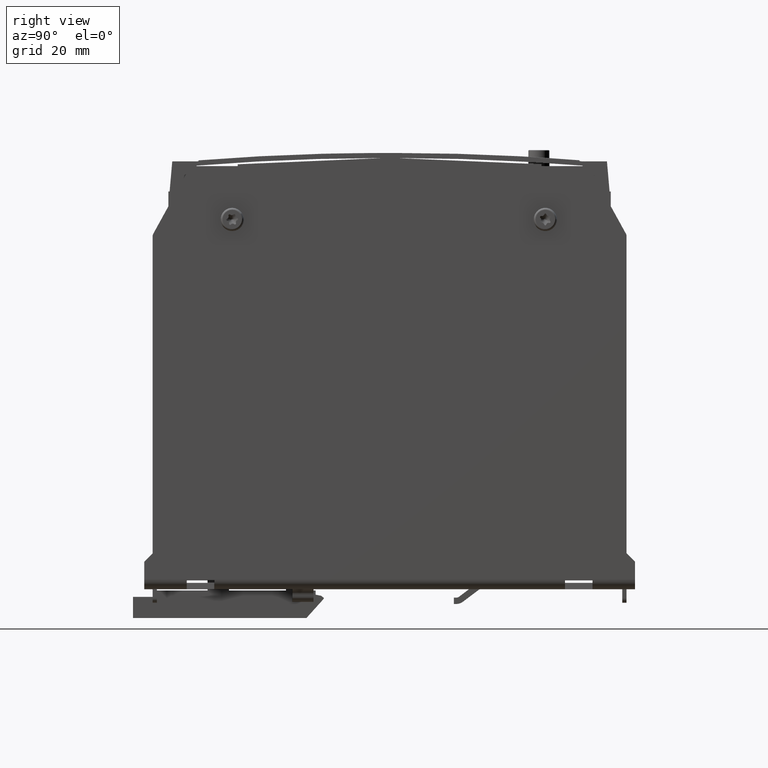
[diagram: clean part render]
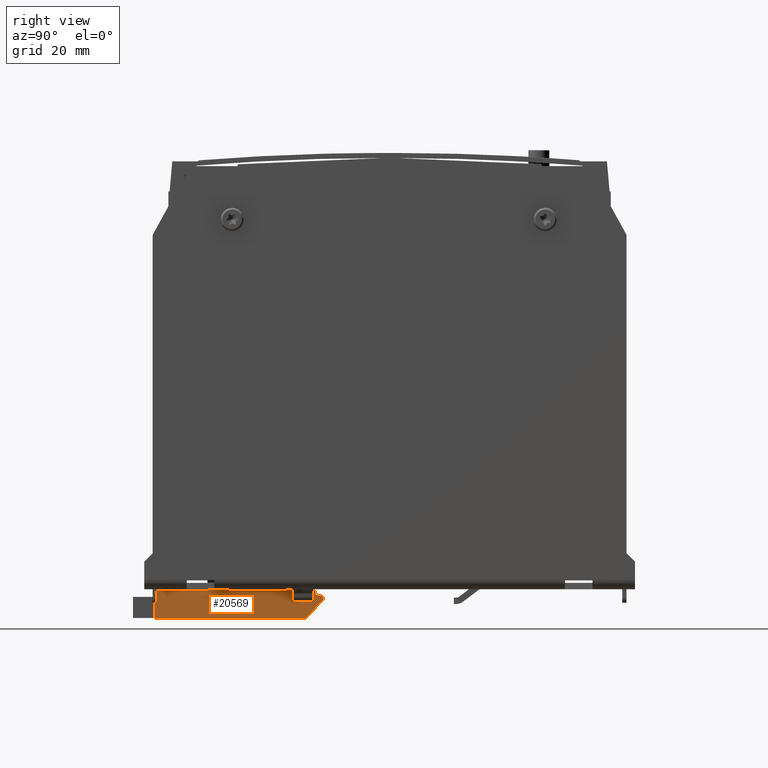
[diagram: same view with one face highlighted and labeled with its STEP entity id]
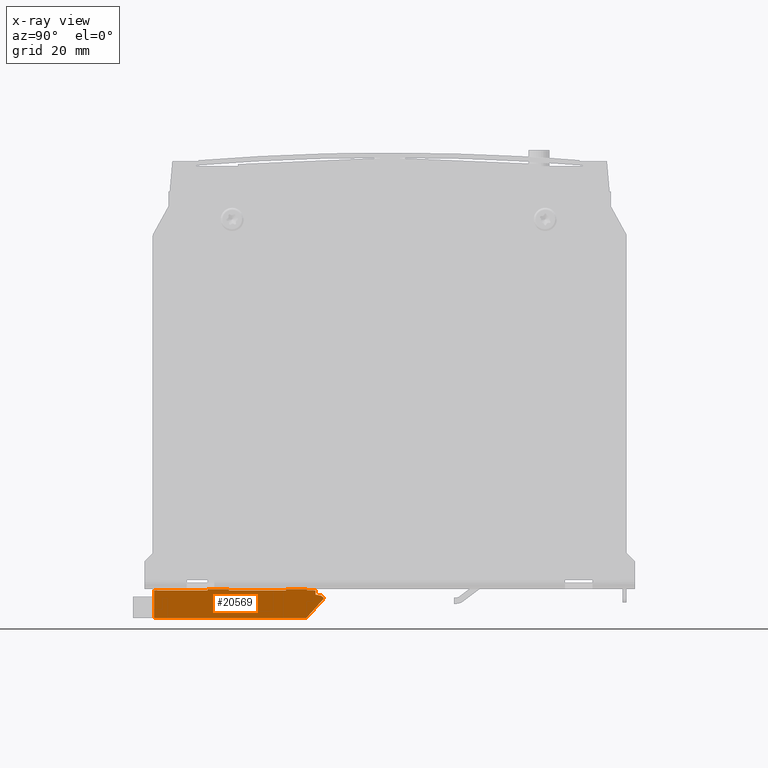
[diagram: x-ray of the same camera — body ghosted, the highlighted face saturated]
A machine part, right view. The second image highlights one B-rep face of the part: STEP entity #20569.
The next image is the same camera in x-ray: the body ghosted, the highlighted face saturated — about 0% of this face is hidden behind the body in this view.
In plain terms, the highlighted planar face has unit normal (1, 0, 0).
Its self-contained STEP definition (entity closure, byte-faithful):
#20433=CARTESIAN_POINT('',(0.393700787401574,-2.387795275590551,-0.011811023622045));
#20434=DIRECTION('',(1.0,0.0,0.0));
#20435=DIRECTION('',(0.0,0.0,-1.0));
#20436=AXIS2_PLACEMENT_3D('',#20433,#20434,#20435);
#20437=PLANE('',#20436);
#20438=CARTESIAN_POINT('',(0.393700787401574,-0.964566929133858,2.108987E-015));
#20439=VERTEX_POINT('',#20438);
#20440=CARTESIAN_POINT('',(0.393700787401574,-0.76771653543307,2.108987E-015));
#20441=VERTEX_POINT('',#20440);
#20442=CARTESIAN_POINT('',(0.393700787401574,-0.964566929133858,2.108987E-015));
#20443=DIRECTION('',(0.0,1.0,0.0));
#20444=VECTOR('',#20443,0.196850393700788);
#20445=LINE('',#20442,#20444);
#20446=EDGE_CURVE('',#20439,#20441,#20445,.T.);
#20447=ORIENTED_EDGE('',*,*,#20446,.F.);
#20448=CARTESIAN_POINT('',(0.393700787401574,-0.964566929133858,-0.011811023622045));
#20449=VERTEX_POINT('',#20448);
#20450=CARTESIAN_POINT('',(0.393700787401574,-0.964566929133858,-0.011811023622045));
#20451=DIRECTION('',(0.0,0.0,1.0));
#20452=VECTOR('',#20451,0.011811023622047);
#20453=LINE('',#20450,#20452);
#20454=EDGE_CURVE('',#20449,#20439,#20453,.T.);
#20455=ORIENTED_EDGE('',*,*,#20454,.F.);
#20456=CARTESIAN_POINT('',(0.393700787401574,-1.496062992125984,-0.011811023622045));
#20457=VERTEX_POINT('',#20456);
#20458=CARTESIAN_POINT('',(0.393700787401574,-0.964566929133858,-0.011811023622045));
#20459=DIRECTION('',(0.0,-1.0,0.0));
#20460=VECTOR('',#20459,0.531496062992126);
#20461=LINE('',#20458,#20460);
#20462=EDGE_CURVE('',#20449,#20457,#20461,.T.);
#20463=ORIENTED_EDGE('',*,*,#20462,.T.);
#20464=CARTESIAN_POINT('',(0.393700787401574,-1.496062992125984,2.108987E-015));
#20465=VERTEX_POINT('',#20464);
#20466=CARTESIAN_POINT('',(0.393700787401574,-1.496062992125984,-0.011811023622045));
#20467=DIRECTION('',(0.0,0.0,1.0));
#20468=VECTOR('',#20467,0.011811023622047);
#20469=LINE('',#20466,#20468);
#20470=EDGE_CURVE('',#20457,#20465,#20469,.T.);
#20471=ORIENTED_EDGE('',*,*,#20470,.T.);
#20472=CARTESIAN_POINT('',(0.393700787401574,-1.692913385826771,2.108987E-015));
#20473=VERTEX_POINT('',#20472);
#20474=CARTESIAN_POINT('',(0.393700787401574,-1.692913385826771,2.108987E-015));
#20475=DIRECTION('',(0.0,1.0,0.0));
#20476=VECTOR('',#20475,0.196850393700788);
#20477=LINE('',#20474,#20476);
#20478=EDGE_CURVE('',#20473,#20465,#20477,.T.);
#20479=ORIENTED_EDGE('',*,*,#20478,.F.);
#20480=CARTESIAN_POINT('',(0.393700787401574,-1.692913385826771,-0.011811023622045));
#20481=VERTEX_POINT('',#20480);
#20482=CARTESIAN_POINT('',(0.393700787401574,-1.692913385826771,-0.011811023622045));
#20483=DIRECTION('',(0.0,0.0,1.0));
#20484=VECTOR('',#20483,0.011811023622047);
#20485=LINE('',#20482,#20484);
#20486=EDGE_CURVE('',#20481,#20473,#20485,.T.);
#20487=ORIENTED_EDGE('',*,*,#20486,.F.);
#20488=CARTESIAN_POINT('',(0.393700787401574,-2.190944881889764,-0.011811023622045));
#20489=VERTEX_POINT('',#20488);
#20490=CARTESIAN_POINT('',(0.393700787401574,-1.692913385826771,-0.011811023622045));
#20491=DIRECTION('',(0.0,-1.0,0.0));
#20492=VECTOR('',#20491,0.498031496062993);
#20493=LINE('',#20490,#20492);
#20494=EDGE_CURVE('',#20481,#20489,#20493,.T.);
#20495=ORIENTED_EDGE('',*,*,#20494,.T.);
#20496=CARTESIAN_POINT('',(0.393700787401574,-2.190944881889764,-0.267716535433069));
#20497=VERTEX_POINT('',#20496);
#20498=CARTESIAN_POINT('',(0.393700787401574,-2.190944881889764,-0.011811023622045));
#20499=DIRECTION('',(0.0,0.0,-1.0));
#20500=VECTOR('',#20499,0.255905511811024);
#20501=LINE('',#20498,#20500);
#20502=EDGE_CURVE('',#20489,#20497,#20501,.T.);
#20503=ORIENTED_EDGE('',*,*,#20502,.T.);
#20504=CARTESIAN_POINT('',(0.393700787401574,-0.773622047244094,-0.267716535433069));
#20505=VERTEX_POINT('',#20504);
#20506=CARTESIAN_POINT('',(0.393700787401574,-2.190944881889764,-0.267716535433069));
#20507=DIRECTION('',(0.0,1.0,0.0));
#20508=VECTOR('',#20507,1.41732283464567);
#20509=LINE('',#20506,#20508);
#20510=EDGE_CURVE('',#20497,#20505,#20509,.T.);
#20511=ORIENTED_EDGE('',*,*,#20510,.T.);
#20512=CARTESIAN_POINT('',(0.393700787401574,-0.62007874015748,-0.097189417014413));
#20513=VERTEX_POINT('',#20512);
#20514=CARTESIAN_POINT('',(0.393700787401574,-0.773622047244094,-0.267716535433069));
#20515=DIRECTION('',(0.0,0.669130606358859,0.743144825477394));
#20516=VECTOR('',#20515,0.229466871829606);
#20517=LINE('',#20514,#20516);
#20518=EDGE_CURVE('',#20505,#20513,#20517,.T.);
#20519=ORIENTED_EDGE('',*,*,#20518,.T.);
#20520=CARTESIAN_POINT('',(0.393700787401574,-0.610236220472441,-0.082867445886122));
#20521=VERTEX_POINT('',#20520);
#20522=CARTESIAN_POINT('',(0.393700787401574,-0.669536648956529,-0.052657315909236));
#20523=DIRECTION('',(1.0,0.0,0.0));
#20524=DIRECTION('',(0.0,0.743144825477394,-0.669130606358858));
#20525=AXIS2_PLACEMENT_3D('',#20522,#20523,#20524);
#20526=CIRCLE('',#20525,0.066552180817887);
#20527=EDGE_CURVE('',#20513,#20521,#20526,.T.);
#20528=ORIENTED_EDGE('',*,*,#20527,.T.);
#20529=CARTESIAN_POINT('',(0.393700787401574,-0.635643877434733,-0.061547890299983));
#20530=VERTEX_POINT('',#20529);
#20531=CARTESIAN_POINT('',(0.393700787401574,-0.610236220472441,-0.082867445886122));
#20532=DIRECTION('',(0.0,-0.766044443118975,0.642787609686543));
#20533=VECTOR('',#20532,0.03316734060343);
#20534=LINE('',#20531,#20533);
#20535=EDGE_CURVE('',#20521,#20530,#20534,.T.);
#20536=ORIENTED_EDGE('',*,*,#20535,.T.);
#20537=CARTESIAN_POINT('',(0.393700787401574,-0.688976377952755,-0.051181102362203));
#20538=VERTEX_POINT('',#20537);
#20539=CARTESIAN_POINT('',(0.393700787401574,-0.635643877434733,-0.061547890299983));
#20540=DIRECTION('',(0.0,-0.981627183447664,0.190808995376545));
#20541=VECTOR('',#20540,0.054330708661417);
#20542=LINE('',#20539,#20541);
#20543=EDGE_CURVE('',#20530,#20538,#20542,.T.);
#20544=ORIENTED_EDGE('',*,*,#20543,.T.);
#20545=CARTESIAN_POINT('',(0.393700787401574,-0.688976377952755,-0.011811023622045));
#20546=VERTEX_POINT('',#20545);
#20547=CARTESIAN_POINT('',(0.393700787401574,-0.688976377952755,-0.051181102362203));
#20548=DIRECTION('',(0.0,0.0,1.0));
#20549=VECTOR('',#20548,0.039370078740157);
#20550=LINE('',#20547,#20549);
#20551=EDGE_CURVE('',#20538,#20546,#20550,.T.);
#20552=ORIENTED_EDGE('',*,*,#20551,.T.);
#20553=CARTESIAN_POINT('',(0.393700787401574,-0.76771653543307,-0.011811023622045));
#20554=VERTEX_POINT('',#20553);
#20555=CARTESIAN_POINT('',(0.393700787401574,-0.688976377952755,-0.011811023622045));
#20556=DIRECTION('',(0.0,-1.0,0.0));
#20557=VECTOR('',#20556,0.078740157480315);
#20558=LINE('',#20555,#20557);
#20559=EDGE_CURVE('',#20546,#20554,#20558,.T.);
#20560=ORIENTED_EDGE('',*,*,#20559,.T.);
#20561=CARTESIAN_POINT('',(0.393700787401574,-0.76771653543307,-0.011811023622045));
#20562=DIRECTION('',(0.0,0.0,1.0));
#20563=VECTOR('',#20562,0.011811023622047);
#20564=LINE('',#20561,#20563);
#20565=EDGE_CURVE('',#20554,#20441,#20564,.T.);
#20566=ORIENTED_EDGE('',*,*,#20565,.T.);
#20567=EDGE_LOOP('',(#20447,#20455,#20463,#20471,#20479,#20487,#20495,#20503,#20511,#20519,#20528,#20536,#20544,#20552,#20560,#20566));
#20568=FACE_OUTER_BOUND('',#20567,.T.);
#20569=ADVANCED_FACE('',(#20568),#20437,.T.);